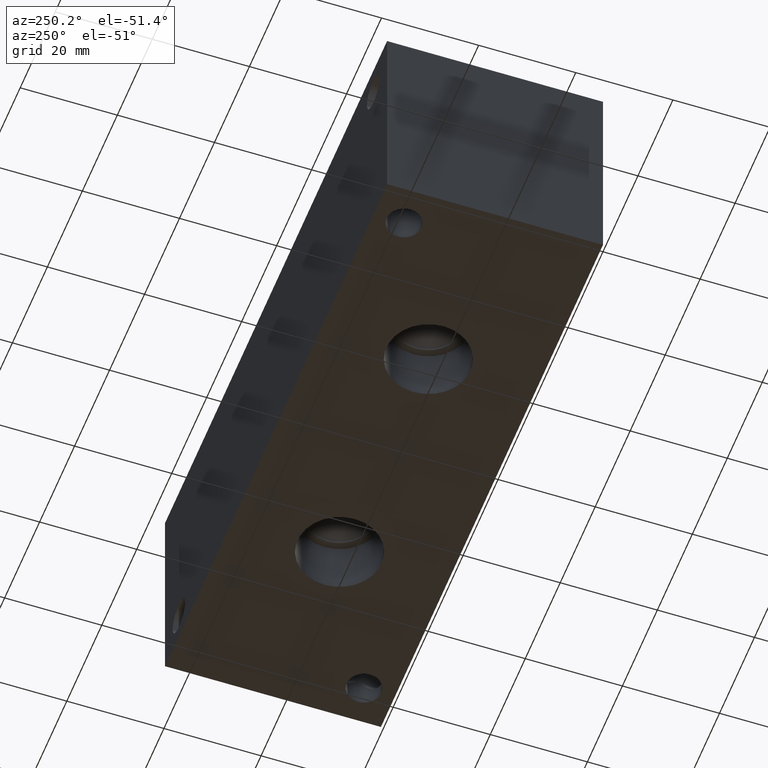
[diagram: clean part render]
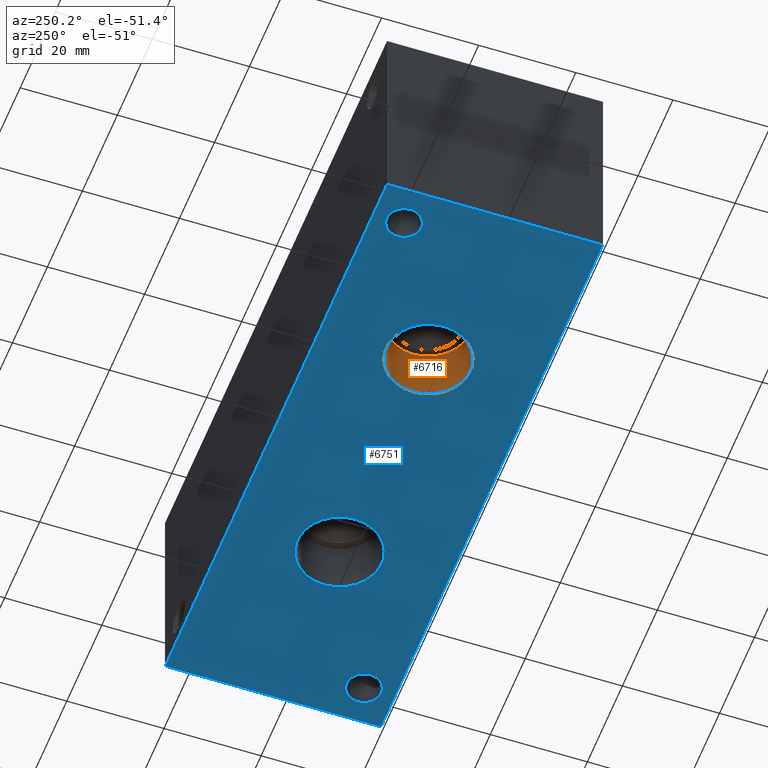
[diagram: same view with the hole feature highlighted: cylindrical wall and planar end face, labeled with their STEP entity ids]
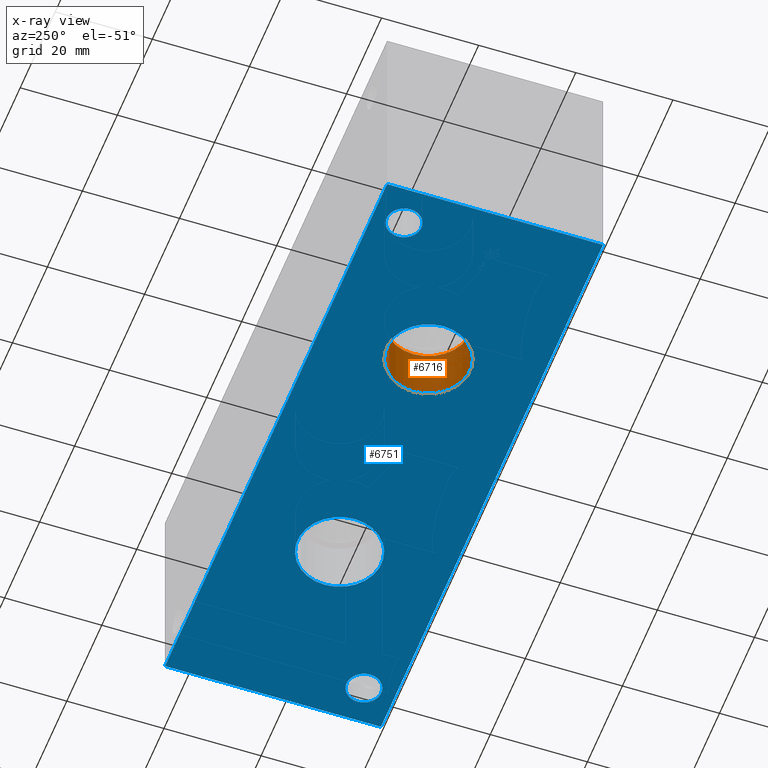
[diagram: x-ray of the same camera — body ghosted, the hole faces saturated]
A machine part, auxiliary view. The highlighted faces form one hole feature of diameter 17.2974 mm: the cylindrical wall (entity #6716, orange) and its adjacent planar end face (entity #6751, blue) — they share a circular edge in the B-rep.
The next image is the same camera in x-ray (body ghosted, the hole faces saturated) — the bore reads through the body.
Wall:
#22=CYLINDRICAL_SURFACE('',#6985,8.6487);
#58=CIRCLE('',#6982,8.6487);
#59=CIRCLE('',#6983,8.6487);
#61=CIRCLE('',#6986,8.6487);
#62=CIRCLE('',#6987,8.6487);
#669=FACE_OUTER_BOUND('',#1041,.T.);
#1041=EDGE_LOOP('',(#5835,#5836,#5837,#5838,#5839,#5840));
#1726=LINE('',#11342,#2393);
#2393=VECTOR('',#8150,8.6487);
#3187=VERTEX_POINT('',#11331);
#3188=VERTEX_POINT('',#11332);
#3190=VERTEX_POINT('',#11338);
#3191=VERTEX_POINT('',#11339);
#4084=EDGE_CURVE('',#3187,#3188,#58,.T.);
#4085=EDGE_CURVE('',#3188,#3187,#59,.T.);
#4087=EDGE_CURVE('',#3190,#3191,#61,.T.);
#4088=EDGE_CURVE('',#3191,#3190,#62,.T.);
#4089=EDGE_CURVE('',#3191,#3188,#1726,.T.);
#5835=ORIENTED_EDGE('',*,*,#4087,.F.);
#5836=ORIENTED_EDGE('',*,*,#4088,.F.);
#5837=ORIENTED_EDGE('',*,*,#4089,.T.);
#5838=ORIENTED_EDGE('',*,*,#4084,.F.);
#5839=ORIENTED_EDGE('',*,*,#4085,.F.);
#5840=ORIENTED_EDGE('',*,*,#4089,.F.);
#6716=ADVANCED_FACE('',(#669),#22,.F.);
#6982=AXIS2_PLACEMENT_3D('',#11333,#8138,#8139);
#6983=AXIS2_PLACEMENT_3D('',#11334,#8140,#8141);
#6985=AXIS2_PLACEMENT_3D('',#11337,#8144,#8145);
#6986=AXIS2_PLACEMENT_3D('',#11340,#8146,#8147);
#6987=AXIS2_PLACEMENT_3D('',#11341,#8148,#8149);
#8138=DIRECTION('center_axis',(0.,0.,-1.));
#8139=DIRECTION('ref_axis',(1.,0.,0.));
#8140=DIRECTION('center_axis',(0.,0.,-1.));
#8141=DIRECTION('ref_axis',(1.,0.,0.));
#8144=DIRECTION('center_axis',(0.,0.,-1.));
#8145=DIRECTION('ref_axis',(1.,0.,0.));
#8146=DIRECTION('center_axis',(0.,0.,1.));
#8147=DIRECTION('ref_axis',(1.,0.,0.));
#8148=DIRECTION('center_axis',(0.,0.,1.));
#8149=DIRECTION('ref_axis',(1.,0.,0.));
#8150=DIRECTION('',(0.,0.,1.));
#11331=CARTESIAN_POINT('',(46.7487,22.225,11.7348));
#11332=CARTESIAN_POINT('',(29.4513,22.225,11.7348));
#11333=CARTESIAN_POINT('Origin',(38.1,22.225,11.7348));
#11334=CARTESIAN_POINT('Origin',(38.1,22.225,11.7348));
#11337=CARTESIAN_POINT('Origin',(38.1,22.225,5.8674));
#11338=CARTESIAN_POINT('',(46.7487,22.225,0.));
#11339=CARTESIAN_POINT('',(29.4513,22.225,0.));
#11340=CARTESIAN_POINT('Origin',(38.1,22.225,0.));
#11341=CARTESIAN_POINT('Origin',(38.1,22.225,0.));
#11342=CARTESIAN_POINT('',(29.4513,22.225,5.8674));
End face:
#61=CIRCLE('',#6986,8.6487);
#62=CIRCLE('',#6987,8.6487);
#68=CIRCLE('',#6997,8.6487);
#69=CIRCLE('',#6998,8.6487);
#76=CIRCLE('',#7021,3.5687);
#77=CIRCLE('',#7023,3.5687);
#145=FACE_BOUND('',#1088,.T.);
#146=FACE_BOUND('',#1089,.T.);
#147=FACE_BOUND('',#1090,.T.);
#148=FACE_BOUND('',#1091,.T.);
#364=PLANE('',#7069);
#704=FACE_OUTER_BOUND('',#1087,.T.);
#1087=EDGE_LOOP('',(#6009,#6010,#6011,#6012));
#1088=EDGE_LOOP('',(#6013,#6014));
#1089=EDGE_LOOP('',(#6015,#6016));
#1090=EDGE_LOOP('',(#6017));
#1091=EDGE_LOOP('',(#6018));
#1751=LINE('',#11494,#2418);
#1754=LINE('',#11499,#2421);
#1756=LINE('',#11503,#2423);
#1758=LINE('',#11506,#2425);
#2418=VECTOR('',#8329,10.);
#2421=VECTOR('',#8334,10.);
#2423=VECTOR('',#8338,10.);
#2425=VECTOR('',#8342,10.);
#3190=VERTEX_POINT('',#11338);
#3191=VERTEX_POINT('',#11339);
#3198=VERTEX_POINT('',#11360);
#3199=VERTEX_POINT('',#11361);
#3210=VERTEX_POINT('',#11404);
#3211=VERTEX_POINT('',#11408);
#3240=VERTEX_POINT('',#11492);
#3241=VERTEX_POINT('',#11493);
#3242=VERTEX_POINT('',#11498);
#3243=VERTEX_POINT('',#11502);
#4087=EDGE_CURVE('',#3190,#3191,#61,.T.);
#4088=EDGE_CURVE('',#3191,#3190,#62,.T.);
#4097=EDGE_CURVE('',#3198,#3199,#68,.T.);
#4098=EDGE_CURVE('',#3199,#3198,#69,.T.);
#4122=EDGE_CURVE('',#3210,#3210,#76,.T.);
#4124=EDGE_CURVE('',#3211,#3211,#77,.T.);
#4161=EDGE_CURVE('',#3240,#3241,#1751,.T.);
#4164=EDGE_CURVE('',#3242,#3240,#1754,.T.);
#4166=EDGE_CURVE('',#3243,#3242,#1756,.T.);
#4168=EDGE_CURVE('',#3241,#3243,#1758,.T.);
#6009=ORIENTED_EDGE('',*,*,#4168,.F.);
#6010=ORIENTED_EDGE('',*,*,#4161,.F.);
#6011=ORIENTED_EDGE('',*,*,#4164,.F.);
#6012=ORIENTED_EDGE('',*,*,#4166,.F.);
#6013=ORIENTED_EDGE('',*,*,#4087,.T.);
#6014=ORIENTED_EDGE('',*,*,#4088,.T.);
#6015=ORIENTED_EDGE('',*,*,#4097,.T.);
#6016=ORIENTED_EDGE('',*,*,#4098,.T.);
#6017=ORIENTED_EDGE('',*,*,#4122,.T.);
#6018=ORIENTED_EDGE('',*,*,#4124,.T.);
#6751=ADVANCED_FACE('',(#704,#145,#146,#147,#148),#364,.F.);
#6986=AXIS2_PLACEMENT_3D('',#11340,#8146,#8147);
#6987=AXIS2_PLACEMENT_3D('',#11341,#8148,#8149);
#6997=AXIS2_PLACEMENT_3D('',#11362,#8171,#8172);
#6998=AXIS2_PLACEMENT_3D('',#11363,#8173,#8174);
#7021=AXIS2_PLACEMENT_3D('',#11406,#8228,#8229);
#7023=AXIS2_PLACEMENT_3D('',#11410,#8233,#8234);
#7069=AXIS2_PLACEMENT_3D('',#11508,#8345,#8346);
#8146=DIRECTION('center_axis',(0.,0.,1.));
#8147=DIRECTION('ref_axis',(1.,0.,0.));
#8148=DIRECTION('center_axis',(0.,0.,1.));
#8149=DIRECTION('ref_axis',(1.,0.,0.));
#8171=DIRECTION('center_axis',(0.,0.,1.));
#8172=DIRECTION('ref_axis',(1.,0.,0.));
#8173=DIRECTION('center_axis',(0.,0.,1.));
#8174=DIRECTION('ref_axis',(1.,0.,0.));
#8228=DIRECTION('center_axis',(0.,0.,1.));
#8229=DIRECTION('ref_axis',(1.,0.,0.));
#8233=DIRECTION('center_axis',(0.,0.,1.));
#8234=DIRECTION('ref_axis',(1.,0.,0.));
#8329=DIRECTION('',(0.,-1.,0.));
#8334=DIRECTION('',(-1.,0.,0.));
#8338=DIRECTION('',(0.,1.,0.));
#8342=DIRECTION('',(1.,0.,0.));
#8345=DIRECTION('center_axis',(0.,0.,1.));
#8346=DIRECTION('ref_axis',(1.,0.,0.));
#11338=CARTESIAN_POINT('',(46.7487,22.225,0.));
#11339=CARTESIAN_POINT('',(29.4513,22.225,0.));
#11340=CARTESIAN_POINT('Origin',(38.1,22.225,0.));
#11341=CARTESIAN_POINT('Origin',(38.1,22.225,0.));
#11360=CARTESIAN_POINT('',(97.5487,22.225,0.));
#11361=CARTESIAN_POINT('',(80.2513,22.225,0.));
#11362=CARTESIAN_POINT('Origin',(88.9,22.225,0.));
#11363=CARTESIAN_POINT('Origin',(88.9,22.225,0.));
#11404=CARTESIAN_POINT('',(115.5065,6.35,0.));
#11406=CARTESIAN_POINT('Origin',(119.0752,6.35,0.));
#11408=CARTESIAN_POINT('',(4.3561,38.1,0.));
#11410=CARTESIAN_POINT('Origin',(7.9248,38.1,0.));
#11492=CARTESIAN_POINT('',(0.,44.45,0.));
#11493=CARTESIAN_POINT('',(0.,0.,0.));
#11494=CARTESIAN_POINT('',(0.,44.45,0.));
#11498=CARTESIAN_POINT('',(127.,44.45,0.));
#11499=CARTESIAN_POINT('',(127.,44.45,0.));
#11502=CARTESIAN_POINT('',(127.,0.,0.));
#11503=CARTESIAN_POINT('',(127.,0.,0.));
#11506=CARTESIAN_POINT('',(0.,0.,0.));
#11508=CARTESIAN_POINT('Origin',(63.5,22.225,0.));